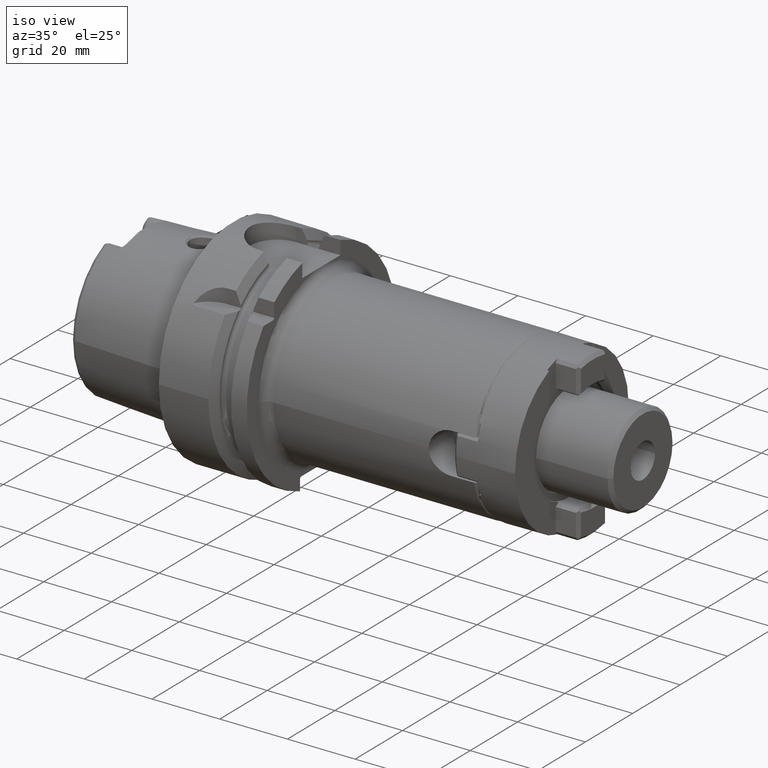
[diagram: clean part render]
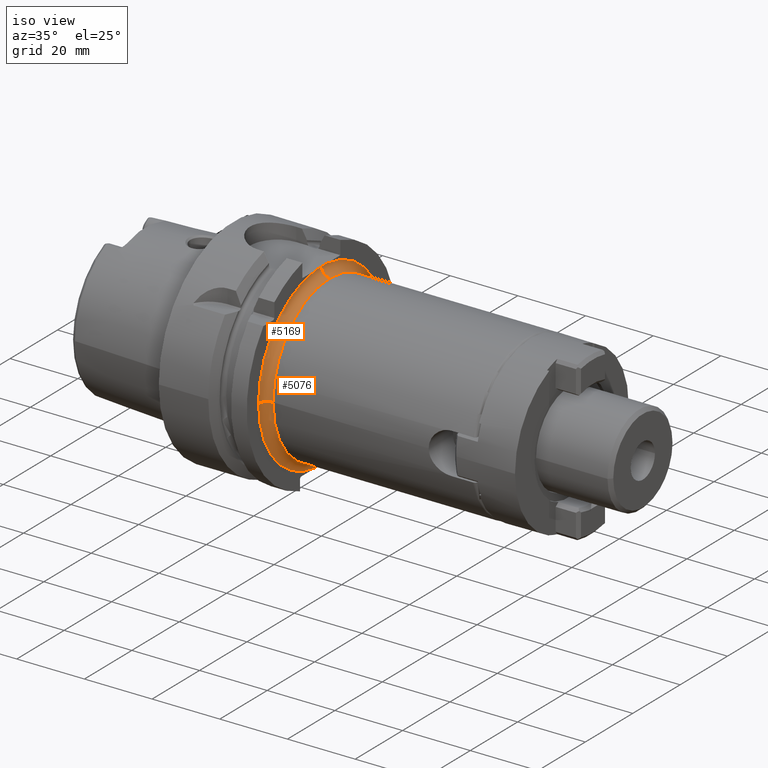
[diagram: same view with one multi-face feature highlighted, each face labeled with its STEP entity id]
A machine part, iso view. The highlighted faces form ONE feature: a constant-radius fillet chain: 2 tangent blend faces with common blend radius 2.5 mm. The faces share edges in the B-rep.
Their STEP definitions:
[1] entity #5076 (Torus):
#1482=CARTESIAN_POINT('',(2.6E1,2.299997641576E0,-2.640000031017E1));
#1483=CARTESIAN_POINT('',(2.6E1,1.788992927042E0,-2.640000031017E1));
#1484=CARTESIAN_POINT('',(2.600210659855E1,7.669124617986E-1,
-2.639999990112E1));
#1485=CARTESIAN_POINT('',(2.600210659854E1,-7.669125612538E-1,
-2.639999988081E1));
#1486=CARTESIAN_POINT('',(2.6E1,-1.788992649423E0,-2.640000034403E1));
#1487=CARTESIAN_POINT('',(2.6E1,-2.299997361363E0,-2.640000034403E1));
#1489=CARTESIAN_POINT('',(2.85E1,-2.65E1,5.234701561108E-14));
#1490=DIRECTION('',(0.E0,0.E0,-1.E0));
#1491=DIRECTION('',(-1.E0,0.E0,0.E0));
#1492=AXIS2_PLACEMENT_3D('',#1489,#1490,#1491);
#1494=CARTESIAN_POINT('',(2.85E1,0.E0,0.E0));
#1495=DIRECTION('',(1.E0,0.E0,0.E0));
#1496=DIRECTION('',(0.E0,-1.E0,0.E0));
#1497=AXIS2_PLACEMENT_3D('',#1494,#1495,#1496);
#1499=CARTESIAN_POINT('',(2.6E1,0.E0,0.E0));
#1500=DIRECTION('',(-1.E0,0.E0,0.E0));
#1501=DIRECTION('',(0.E0,8.679260296773E-2,9.962264020142E-1));
#1502=AXIS2_PLACEMENT_3D('',#1499,#1500,#1501);
#1520=CARTESIAN_POINT('',(2.6E1,0.E0,0.E0));
#1521=DIRECTION('',(1.E0,0.E0,0.E0));
#1522=DIRECTION('',(0.E0,-1.E0,0.E0));
#1523=AXIS2_PLACEMENT_3D('',#1520,#1521,#1522);
#1554=CARTESIAN_POINT('',(2.600200080064E1,-4.824658383989E-6,2.64E1));
#1574=CARTESIAN_POINT('',(2.6E1,2.299997376658E0,2.640000034497E1));
#1575=CARTESIAN_POINT('',(2.6E1,2.044861344858E0,2.640000034497E1));
#1576=CARTESIAN_POINT('',(2.600057299155E1,1.534308860358E0,2.639999983902E1));
#1577=CARTESIAN_POINT('',(2.600168649242E1,7.672672496415E-1,2.640000004600E1));
#1578=CARTESIAN_POINT('',(2.600200080251E1,2.558083330012E-1,2.64E1));
#1579=CARTESIAN_POINT('',(2.600200080064E1,-4.824658383989E-6,2.64E1));
#1581=CARTESIAN_POINT('',(2.85E1,-4.842933603391E-6,2.65E1));
#1582=DIRECTION('',(0.E0,-1.E0,-1.827522114481E-7));
#1583=DIRECTION('',(-9.991996797438E-1,7.310088457893E-9,-3.999999999983E-2));
#1584=AXIS2_PLACEMENT_3D('',#1581,#1582,#1583);
#1608=CARTESIAN_POINT('',(2.85E1,0.E0,0.E0));
#1609=DIRECTION('',(1.E0,0.E0,0.E0));
#1610=DIRECTION('',(0.E0,1.E0,0.E0));
#1611=AXIS2_PLACEMENT_3D('',#1608,#1609,#1610);
#3433=CARTESIAN_POINT('',(2.85E1,2.4E1,0.E0));
#3434=CARTESIAN_POINT('',(2.85E1,-8.267347512055E-6,2.4E1));
#3435=VERTEX_POINT('',#3433);
#3436=VERTEX_POINT('',#3434);
#3495=CARTESIAN_POINT('',(2.85E1,-2.4E1,-1.879645275307E-12));
#3496=VERTEX_POINT('',#3495);
#3512=CARTESIAN_POINT('',(2.6E1,-2.65E1,0.E0));
#3513=CARTESIAN_POINT('',(2.6E1,-2.300003901110E0,-2.639999966013E1));
#3514=VERTEX_POINT('',#3512);
#3515=VERTEX_POINT('',#3513);
#3518=CARTESIAN_POINT('',(2.6E1,2.300003978645E0,2.639999965338E1));
#3519=CARTESIAN_POINT('',(2.6E1,2.300003578319E0,-2.639999968825E1));
#3520=VERTEX_POINT('',#3518);
#3521=VERTEX_POINT('',#3519);
#3522=VERTEX_POINT('',#1554);
#5054=CARTESIAN_POINT('',(2.85E1,0.E0,0.E0));
#5055=DIRECTION('',(1.E0,0.E0,0.E0));
#5056=DIRECTION('',(0.E0,9.999948687983E-1,-3.203494520730E-3));
#5057=AXIS2_PLACEMENT_3D('',#5054,#5055,#5056);
#5058=TOROIDAL_SURFACE('',#5057,2.65E1,2.5E0);
#5059=ORIENTED_EDGE('',*,*,#5028,.T.);
#5061=ORIENTED_EDGE('',*,*,#5060,.F.);
#5063=ORIENTED_EDGE('',*,*,#5062,.T.);
#5065=ORIENTED_EDGE('',*,*,#5064,.T.);
#5067=ORIENTED_EDGE('',*,*,#5066,.T.);
#5069=ORIENTED_EDGE('',*,*,#5068,.F.);
#5071=ORIENTED_EDGE('',*,*,#5070,.F.);
#5073=ORIENTED_EDGE('',*,*,#5072,.T.);
#5074=EDGE_LOOP('',(#5059,#5061,#5063,#5065,#5067,#5069,#5071,#5073));
#5075=FACE_OUTER_BOUND('',#5074,.F.);
#5076=ADVANCED_FACE('',(#5075),#5058,.F.);
#1488=B_SPLINE_CURVE_WITH_KNOTS('',3,(#1482,#1483,#1484,#1485,#1486,#1487),
.UNSPECIFIED.,.F.,.F.,(4,1,1,4),(0.E0,3.333333333333E-1,6.666666666667E-1,1.E0),
.UNSPECIFIED.);
#1493=CIRCLE('',#1492,2.5E0);
#1498=CIRCLE('',#1497,2.4E1);
#1503=CIRCLE('',#1502,2.65E1);
#1524=CIRCLE('',#1523,2.65E1);
#1580=B_SPLINE_CURVE_WITH_KNOTS('',3,(#1574,#1575,#1576,#1577,#1578,#1579),
.UNSPECIFIED.,.F.,.F.,(4,1,1,4),(0.E0,3.333333333333E-1,6.666666666667E-1,1.E0),
.UNSPECIFIED.);
#1585=CIRCLE('',#1584,2.5E0);
#1612=CIRCLE('',#1611,2.4E1);
#5028=EDGE_CURVE('',#3521,#3515,#1488,.T.);
#5060=EDGE_CURVE('',#3514,#3515,#1524,.T.);
#5062=EDGE_CURVE('',#3514,#3496,#1493,.T.);
#5064=EDGE_CURVE('',#3496,#3435,#1498,.T.);
#5066=EDGE_CURVE('',#3435,#3436,#1612,.T.);
#5068=EDGE_CURVE('',#3522,#3436,#1585,.T.);
#5070=EDGE_CURVE('',#3520,#3522,#1580,.T.);
#5072=EDGE_CURVE('',#3520,#3521,#1503,.T.);
[2] entity #5169 (Torus):
#1489=CARTESIAN_POINT('',(2.85E1,-2.65E1,5.234701561108E-14));
#1490=DIRECTION('',(0.E0,0.E0,-1.E0));
#1491=DIRECTION('',(-1.E0,0.E0,0.E0));
#1492=AXIS2_PLACEMENT_3D('',#1489,#1490,#1491);
#1549=CARTESIAN_POINT('',(2.6E1,0.E0,0.E0));
#1550=DIRECTION('',(1.E0,0.E0,0.E0));
#1551=DIRECTION('',(0.E0,-8.679258517971E-2,9.962264035639E-1));
#1552=AXIS2_PLACEMENT_3D('',#1549,#1550,#1551);
#1554=CARTESIAN_POINT('',(2.600200080064E1,-4.824658383989E-6,2.64E1));
#1555=CARTESIAN_POINT('',(2.600200079877E1,-2.558205368604E-1,2.64E1));
#1556=CARTESIAN_POINT('',(2.600168647596E1,-7.672822564928E-1,
2.640000004147E1));
#1557=CARTESIAN_POINT('',(2.600057296244E1,-1.534327425029E0,2.639999985486E1));
#1558=CARTESIAN_POINT('',(2.6E1,-2.044869307108E0,2.640000031102E1));
#1559=CARTESIAN_POINT('',(2.6E1,-2.299997608018E0,2.640000031102E1));
#1581=CARTESIAN_POINT('',(2.85E1,-4.842933603391E-6,2.65E1));
#1582=DIRECTION('',(0.E0,-1.E0,-1.827522114481E-7));
#1583=DIRECTION('',(-9.991996797438E-1,7.310088457893E-9,-3.999999999983E-2));
#1584=AXIS2_PLACEMENT_3D('',#1581,#1582,#1583);
#1603=CARTESIAN_POINT('',(2.85E1,0.E0,0.E0));
#1604=DIRECTION('',(1.E0,0.E0,0.E0));
#1605=DIRECTION('',(0.E0,-3.444728130021E-7,9.999999999999E-1));
#1606=AXIS2_PLACEMENT_3D('',#1603,#1604,#1605);
#3434=CARTESIAN_POINT('',(2.85E1,-8.267347512055E-6,2.4E1));
#3436=VERTEX_POINT('',#3434);
#3495=CARTESIAN_POINT('',(2.85E1,-2.4E1,-1.879645275307E-12));
#3496=VERTEX_POINT('',#3495);
#3512=CARTESIAN_POINT('',(2.6E1,-2.65E1,0.E0));
#3514=VERTEX_POINT('',#3512);
#3516=CARTESIAN_POINT('',(2.6E1,-2.300003507262E0,2.639999969444E1));
#3517=VERTEX_POINT('',#3516);
#3522=VERTEX_POINT('',#1554);
#5156=CARTESIAN_POINT('',(2.85E1,0.E0,0.E0));
#5157=DIRECTION('',(1.E0,0.E0,0.E0));
#5158=DIRECTION('',(0.E0,1.485959642860E-3,-9.999988959614E-1));
#5159=AXIS2_PLACEMENT_3D('',#5156,#5157,#5158);
#5160=TOROIDAL_SURFACE('',#5159,2.65E1,2.5E0);
#5162=ORIENTED_EDGE('',*,*,#5161,.T.);
#5163=ORIENTED_EDGE('',*,*,#5062,.F.);
#5164=ORIENTED_EDGE('',*,*,#5120,.F.);
#5165=ORIENTED_EDGE('',*,*,#5130,.F.);
#5166=ORIENTED_EDGE('',*,*,#5068,.T.);
#5167=EDGE_LOOP('',(#5162,#5163,#5164,#5165,#5166));
#5168=FACE_OUTER_BOUND('',#5167,.F.);
#5169=ADVANCED_FACE('',(#5168),#5160,.F.);
#1493=CIRCLE('',#1492,2.5E0);
#1553=CIRCLE('',#1552,2.65E1);
#1560=B_SPLINE_CURVE_WITH_KNOTS('',3,(#1554,#1555,#1556,#1557,#1558,#1559),
.UNSPECIFIED.,.F.,.F.,(4,1,1,4),(0.E0,3.333333333333E-1,6.666666666667E-1,1.E0),
.UNSPECIFIED.);
#1585=CIRCLE('',#1584,2.5E0);
#1607=CIRCLE('',#1606,2.4E1);
#5062=EDGE_CURVE('',#3514,#3496,#1493,.T.);
#5068=EDGE_CURVE('',#3522,#3436,#1585,.T.);
#5120=EDGE_CURVE('',#3517,#3514,#1553,.T.);
#5130=EDGE_CURVE('',#3522,#3517,#1560,.T.);
#5161=EDGE_CURVE('',#3436,#3496,#1607,.T.);